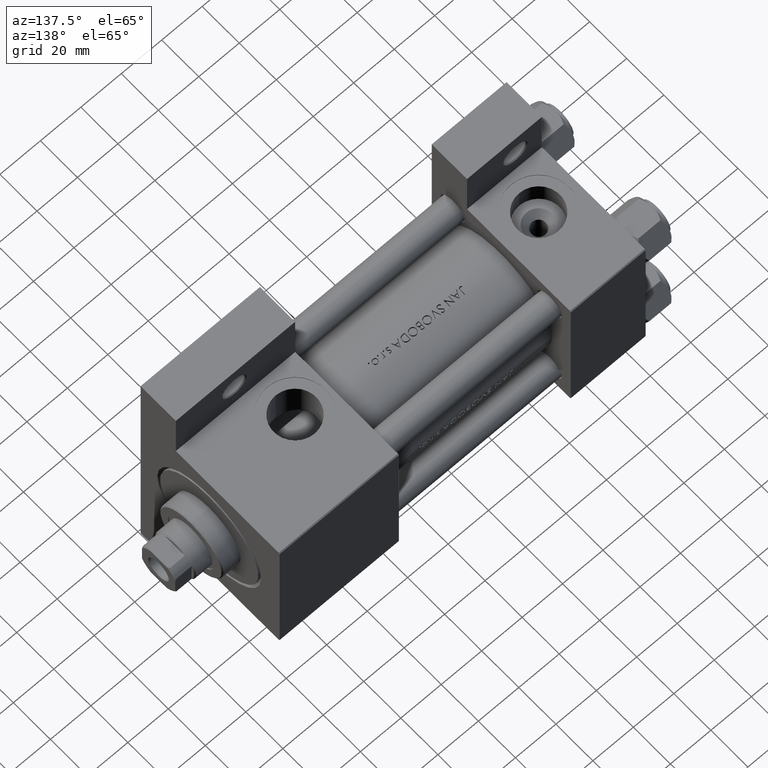
[diagram: clean part render]
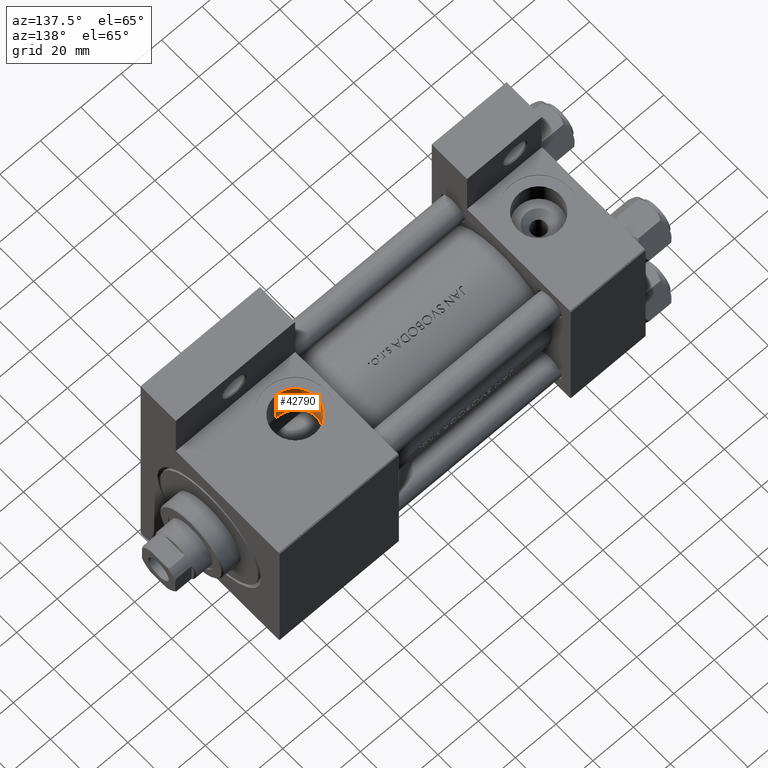
[diagram: same view with one face highlighted and labeled with its STEP entity id]
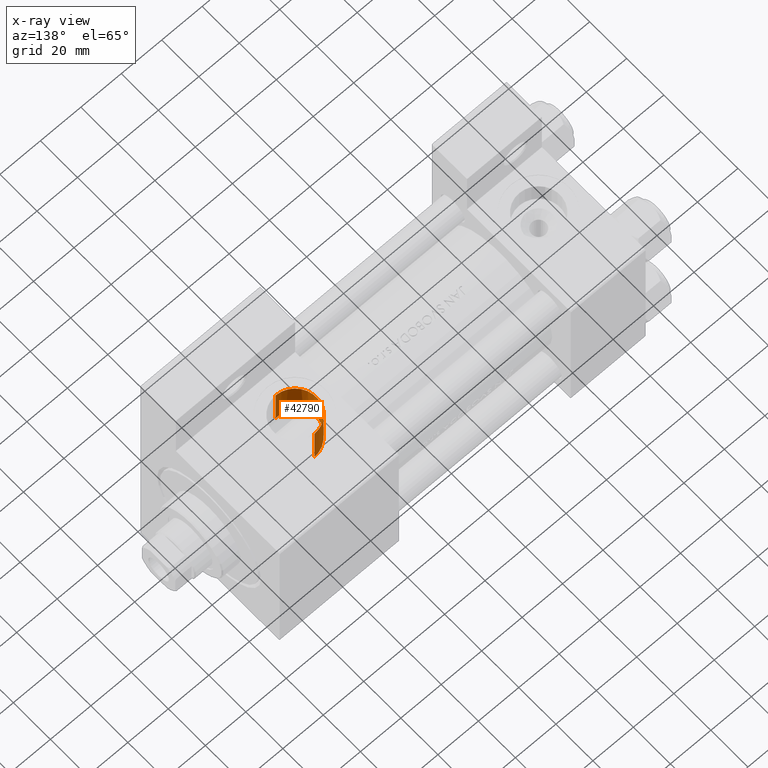
[diagram: x-ray of the same camera — body ghosted, the highlighted face saturated]
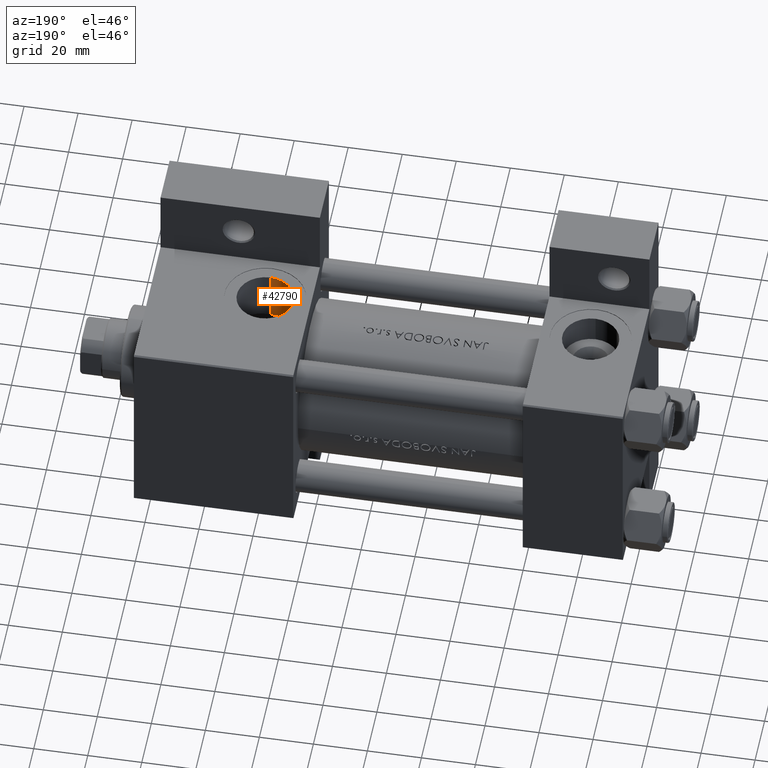
[diagram: same view with one face highlighted and labeled with its STEP entity id]
A machine part, auxiliary view. The second image highlights one B-rep face of the part: STEP entity #42790.
The next image is the same camera in x-ray: the body ghosted, the highlighted face saturated — about 0% of this face is hidden behind the body in this view.
A second angle (auxiliary view) of the same face is appended — the face is thin or edge-on in the first view.
In plain terms, the highlighted cylindrical surface (edge-blend (fillet) strip) has radius 10.48 mm, axis along (-0, -0, 1).
Its self-contained STEP definition (entity closure, byte-faithful):
#233 = CYLINDRICAL_SURFACE ( 'NONE', #3640, 10.47999999999998622 ) ;
#414 = ORIENTED_EDGE ( 'NONE', *, *, #9656, .T. ) ;
#1586 = CARTESIAN_POINT ( 'NONE',  ( 135.5836453213384232, -18.21117968299172318, -9.913622529243992787 ) ) ;
#2077 = CARTESIAN_POINT ( 'NONE',  ( 128.7848721841020279, -20.41767756798353517, -2.366995833931131887 ) ) ;
#2814 = CARTESIAN_POINT ( 'NONE',  ( 131.3809730746911839, -18.99918516550075864, 7.203644680487136576 ) ) ;
#3053 = CARTESIAN_POINT ( 'NONE',  ( 132.6096037740494467, -18.50380750299995825, 8.333875197508969990 ) ) ;
#3640 = AXIS2_PLACEMENT_3D ( 'NONE', #31600, #46069, #15424 ) ;
#4050 = CARTESIAN_POINT ( 'NONE',  ( 139.0000000000000000, -17.31154528053461306, 10.47999999999999154 ) ) ;
#4830 = CARTESIAN_POINT ( 'NONE',  ( 128.5411270509841870, -20.46474067275494235, 0.7514081746990727284 ) ) ;
#5074 = CARTESIAN_POINT ( 'NONE',  ( 128.8085289422962205, -20.28709306372374144, 2.466525892830137678 ) ) ;
#6045 = VECTOR ( 'NONE', #47136, 1000.000000000000000 ) ;
#6240 = CARTESIAN_POINT ( 'NONE',  ( 139.0000000000000000, 37.50100000000000477, 10.47999999999999687 ) ) ;
#6791 = CARTESIAN_POINT ( 'NONE',  ( 130.7233602415656151, -19.29242988523072455, 6.437503504559508372 ) ) ;
#6948 = CARTESIAN_POINT ( 'NONE',  ( 139.0000000000000000, -37.29999999999999716, 10.47999999999998977 ) ) ;
#7365 = EDGE_CURVE ( 'NONE', #17013, #44157, #40694, .T. ) ;
#7426 = DIRECTION ( 'NONE',  ( 0.000000000000000000, 0.000000000000000000, -1.000000000000000000 ) ) ;
#8569 = CARTESIAN_POINT ( 'NONE',  ( 128.6144618885458044, -20.41033060918976716, 1.446801902193837419 ) ) ;
#9056 = CARTESIAN_POINT ( 'NONE',  ( 133.7109170005340957, -18.62590504215679843, -9.073138281531836213 ) ) ;
#9236 = DIRECTION ( 'NONE',  ( -0.000000000000000000, -1.000000000000000000, -8.673617379884036705E-17 ) ) ;
#9553 = CARTESIAN_POINT ( 'NONE',  ( 132.8618195419076642, -18.87524337706392785, -8.501152861621346091 ) ) ;
#9656 = EDGE_CURVE ( 'NONE', #43487, #39297, #32451, .T. ) ;
#9799 = CARTESIAN_POINT ( 'NONE',  ( 129.1012934303699069, -20.11685413836228520, 3.459060791729260842 ) ) ;
#10049 = CARTESIAN_POINT ( 'NONE',  ( 132.0925800491787356, -18.70257500022392350, 7.909780117561129309 ) ) ;
#12549 = CARTESIAN_POINT ( 'NONE',  ( 128.8951751743530565, -20.23535558307757753, 2.800358647656736366 ) ) ;
#12962 = ORIENTED_EDGE ( 'NONE', *, *, #13374, .T. ) ;
#13041 = CARTESIAN_POINT ( 'NONE',  ( 131.3390100190131875, -19.38994764023254547, -7.159155389767049016 ) ) ;
#13286 = CARTESIAN_POINT ( 'NONE',  ( 138.2936450912457929, -17.90669148670409427, -10.47999999999998266 ) ) ;
#13374 = EDGE_CURVE ( 'NONE', #39297, #17013, #43355, .T. ) ;
#13533 = CARTESIAN_POINT ( 'NONE',  ( 128.8700277560727159, -20.38347105376919899, -2.708475799773472303 ) ) ;
#13773 = CARTESIAN_POINT ( 'NONE',  ( 131.1545344758437750, -19.09783805311036531, 6.956499678098867712 ) ) ;
#14495 = CARTESIAN_POINT ( 'NONE',  ( 130.5187940887308002, -19.38832963419614686, 6.165523076675714087 ) ) ;
#15424 = DIRECTION ( 'NONE',  ( 0.000000000000000000, 0.000000000000000000, -1.000000000000000000 ) ) ;
#15678 = EDGE_LOOP ( 'NONE', ( #414, #12962, #48728, #34031 ) ) ;
#16283 = CARTESIAN_POINT ( 'NONE',  ( 130.4759556616728560, -19.72067553347482871, -6.106406543856691904 ) ) ;
#16756 = LINE ( 'NONE', #44146, #6045 ) ;
#17013 = VERTEX_POINT ( 'NONE', #6948 ) ;
#17020 = CARTESIAN_POINT ( 'NONE',  ( 131.8154452386611695, -19.21913497042929819, -7.637175280490518858 ) ) ;
#17266 = CARTESIAN_POINT ( 'NONE',  ( 128.5169168091323684, -20.51137673509301607, -0.6516029565374291677 ) ) ;
#18008 = CARTESIAN_POINT ( 'NONE',  ( 129.6245642930965971, -19.83139452378803469, 4.733173975255231092 ) ) ;
#20504 = CARTESIAN_POINT ( 'NONE',  ( 136.2485181366844813, -18.10389330548456144, -10.11833674566095809 ) ) ;
#20749 = CARTESIAN_POINT ( 'NONE',  ( 132.5874752611917984, -18.96115153041446533, -8.296067076494248127 ) ) ;
#20760 = EDGE_CURVE ( 'NONE', #43487, #44157, #16756, .T. ) ;
#20823 = AXIS2_PLACEMENT_3D ( 'NONE', #31325, #26352, #7426 ) ;
#20995 = CARTESIAN_POINT ( 'NONE',  ( 129.1894306476518466, -20.25102656977831472, -3.701459934073187075 ) ) ;
#21248 = CARTESIAN_POINT ( 'NONE',  ( 139.0000000000000000, -17.31154528053461306, 10.47999999999999154 ) ) ;
#21975 = CARTESIAN_POINT ( 'NONE',  ( 134.3335954883718273, -17.94904599600548067, 9.408192873974195791 ) ) ;
#24502 = CARTESIAN_POINT ( 'NONE',  ( 137.6018487986953289, -17.94656342485971834, -10.40934886090304445 ) ) ;
#25713 = CARTESIAN_POINT ( 'NONE',  ( 138.3044545345209713, -17.31154528053461306, 10.47999999999998799 ) ) ;
#26352 = DIRECTION ( 'NONE',  ( 0.000000000000000000, -1.000000000000000000, -8.673617379884036705E-17 ) ) ;
#28723 = CARTESIAN_POINT ( 'NONE',  ( 128.5217053303387900, -20.48332967077006117, 0.3975496392329740392 ) ) ;
#28969 = CARTESIAN_POINT ( 'NONE',  ( 133.7374011664607849, -18.12441261360092071, 9.088217275655877003 ) ) ;
#31325 = CARTESIAN_POINT ( 'NONE',  ( 139.0000000000000000, -37.29999999999999716, 3.486794186713383443E-15 ) ) ;
#31600 = CARTESIAN_POINT ( 'NONE',  ( 139.0000000000000000, 37.50100000000000477, 9.974746723040443104E-15 ) ) ;
#32207 = CARTESIAN_POINT ( 'NONE',  ( 130.6811096513063433, -19.63967553149033662, -6.382942706579979308 ) ) ;
#32451 = B_SPLINE_CURVE_WITH_KNOTS ( 'NONE', 3,
 ( #39186, #13286, #24502, #42932, #20504, #1586, #47165, #43178, #9056, #9553, #20749, #46667, #17020, #13041, #35937, #32207, #16283, #47417, #43678, #20995, #36183, #13533, #2077, #38947, #17266, #28723, #4830, #8569, #35199, #5074, #12549, #9799, #44173, #18008, #40657, #14495, #6791, #13773, #2814, #10049, #3053, #28969, #21975, #44416, #33188, #43924, #32938, #40171, #25713, #21248 ),
 .UNSPECIFIED., .F., .F.,
 ( 4, 2, 2, 2, 2, 2, 2, 2, 2, 2, 2, 2, 2, 2, 2, 2, 2, 2, 2, 2, 2, 2, 2, 2, 4 ),
 ( 0.000000000000000000, 0.002085732680859665386, 0.003128599021289498079, 0.004171465361719331640, 0.006257198042579001362, 0.007300064383008868750, 0.008342930723438736137, 0.009385797063868604392, 0.01042866340429847091, 0.01251439608515820916, 0.01355726242558807741, 0.01460012876601794393, 0.01668586144687766656, 0.01772872778730752441, 0.01877159412773738573, 0.01981446046816724010, 0.02085732680859709795, 0.02294305948945684834, 0.02398592582988672700, 0.02502879217031659873, 0.02711452485117639769, 0.02920025753203619318, 0.03024312387246609266, 0.03128599021289599214, 0.03337172289375578416 ),
 .UNSPECIFIED. ) ;
#32938 = CARTESIAN_POINT ( 'NONE',  ( 136.5877247240034080, -17.48338598744718553, 10.20456839096644686 ) ) ;
#33188 = CARTESIAN_POINT ( 'NONE',  ( 135.5915143732480885, -17.65692230102833804, 9.916186572683965750 ) ) ;
#34031 = ORIENTED_EDGE ( 'NONE', *, *, #20760, .F. ) ;
#35199 = CARTESIAN_POINT ( 'NONE',  ( 128.6681735545246283, -20.37457923911943425, 1.789747077269117970 ) ) ;
#35937 = CARTESIAN_POINT ( 'NONE',  ( 131.1121230715595800, -19.47452367214849289, -6.908494176797777442 ) ) ;
#36183 = CARTESIAN_POINT ( 'NONE',  ( 129.0726434498571393, -20.29999609518735681, -3.376354653621503665 ) ) ;
#38947 = CARTESIAN_POINT ( 'NONE',  ( 128.5830884358184107, -20.49411676436530172, -1.342674851160322147 ) ) ;
#39073 = FACE_OUTER_BOUND ( 'NONE', #15678, .T. ) ;
#39186 = CARTESIAN_POINT ( 'NONE',  ( 139.0000000000000000, -17.90669148670408362, -10.47999999999998089 ) ) ;
#39297 = VERTEX_POINT ( 'NONE', #4050 ) ;
#40171 = CARTESIAN_POINT ( 'NONE',  ( 137.6144639565822274, -17.35559248084097916, 10.41144764597005867 ) ) ;
#40657 = CARTESIAN_POINT ( 'NONE',  ( 129.9495768395414643, -19.66322346998766690, 5.326983638994165382 ) ) ;
#40694 = CIRCLE ( 'NONE', #20823, 10.47999999999998622 ) ;
#42196 = CARTESIAN_POINT ( 'NONE',  ( 139.0000000000000000, -37.29999999999999716, -10.47999999999998266 ) ) ;
#42790 = ADVANCED_FACE ( 'NONE', ( #39073 ), #233, .F. ) ;
#42932 = CARTESIAN_POINT ( 'NONE',  ( 136.5843153394802130, -18.05810427117003059, -10.20365670940336855 ) ) ;
#43178 = CARTESIAN_POINT ( 'NONE',  ( 134.3089432184007705, -18.47132649600307630, -9.396531025392601322 ) ) ;
#43355 = LINE ( 'NONE', #6240, #44894 ) ;
#43487 = VERTEX_POINT ( 'NONE', #47896 ) ;
#43678 = CARTESIAN_POINT ( 'NONE',  ( 129.5840202247433979, -20.08544715864210772, -4.651927720320701454 ) ) ;
#43924 = CARTESIAN_POINT ( 'NONE',  ( 136.2485603725489227, -17.53617776474739998, 10.11820687614873471 ) ) ;
#44146 = CARTESIAN_POINT ( 'NONE',  ( 139.0000000000000000, 37.50100000000000477, -10.47999999999997556 ) ) ;
#44157 = VERTEX_POINT ( 'NONE', #42196 ) ;
#44173 = CARTESIAN_POINT ( 'NONE',  ( 129.2215461673905565, -20.04967575897764220, 3.785508326117125399 ) ) ;
#44416 = CARTESIAN_POINT ( 'NONE',  ( 135.2712649677958154, -17.72514759185509092, 9.800086280978524300 ) ) ;
#44894 = VECTOR ( 'NONE', #9236, 1000.000000000000000 ) ;
#46069 = DIRECTION ( 'NONE',  ( -0.000000000000000000, -1.000000000000000000, -8.673617379884036705E-17 ) ) ;
#46667 = CARTESIAN_POINT ( 'NONE',  ( 132.0649927009445435, -19.13289277132431820, -7.864532804023773416 ) ) ;
#47136 = DIRECTION ( 'NONE',  ( -0.000000000000000000, -1.000000000000000000, -8.673617379884036705E-17 ) ) ;
#47165 = CARTESIAN_POINT ( 'NONE',  ( 135.2574528650403920, -18.27226487592814053, -9.794965196591773449 ) ) ;
#47417 = CARTESIAN_POINT ( 'NONE',  ( 129.9055833317326289, -19.95017549749733021, -5.252667561004577657 ) ) ;
#47896 = CARTESIAN_POINT ( 'NONE',  ( 139.0000000000000000, -17.90669148670408362, -10.47999999999998089 ) ) ;
#48728 = ORIENTED_EDGE ( 'NONE', *, *, #7365, .T. ) ;